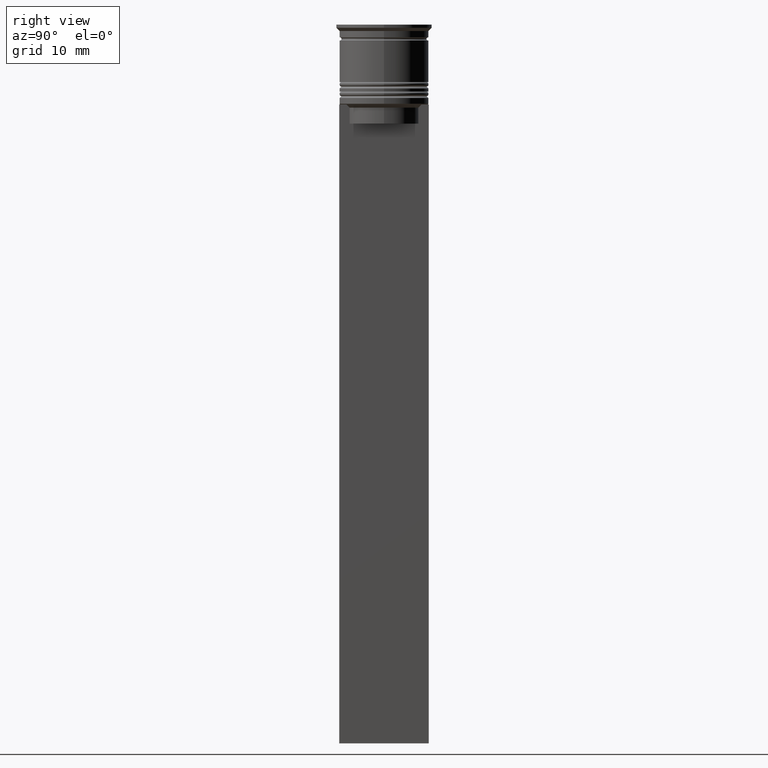
[diagram: clean part render]
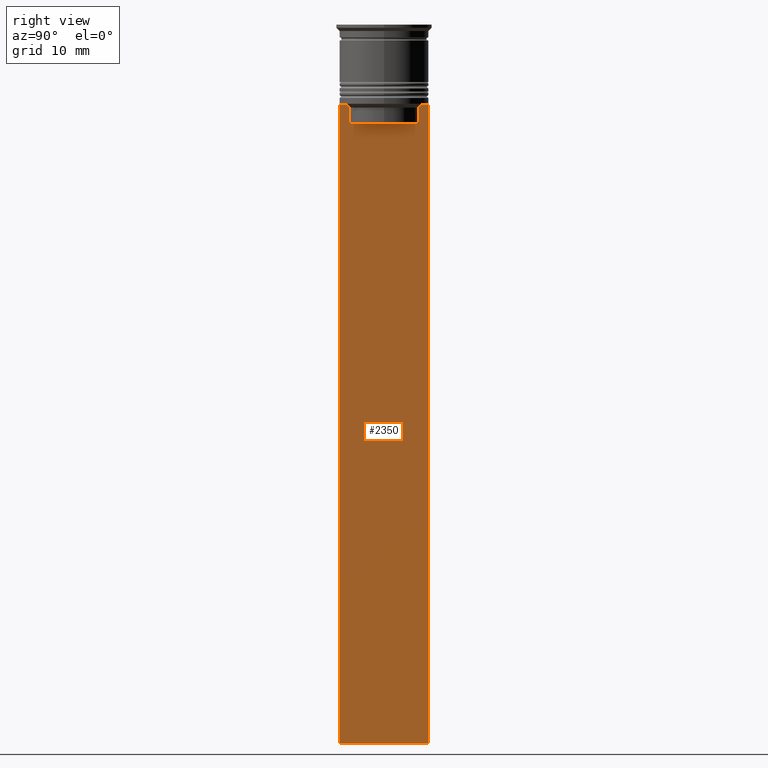
[diagram: same view with one face highlighted and labeled with its STEP entity id]
A machine part, right view. The second image highlights one B-rep face of the part: STEP entity #2350.
In plain terms, the highlighted planar face has unit normal (-1, 0, 0).
Its self-contained STEP definition (entity closure, byte-faithful):
#13 = CARTESIAN_POINT ( 'NONE',  ( 0.5000000000000000000, -6.999999999999997335, -112.5000000000000000 ) ) ;
#14 = VERTEX_POINT ( 'NONE', #2319 ) ;
#54 = B_SPLINE_CURVE_WITH_KNOTS ( 'NONE', 3,
 ( #2206, #819, #2405, #638 ),
 .UNSPECIFIED., .F., .F.,
 ( 4, 4 ),
 ( 0.01003009312103698807, 0.01073859663834952557 ),
 .UNSPECIFIED. ) ;
#67 = EDGE_LOOP ( 'NONE', ( #1154, #2326, #1482, #741, #858, #460, #88, #703, #2059, #2252, #1479, #1478 ) ) ;
#78 = VERTEX_POINT ( 'NONE', #1251 ) ;
#88 = ORIENTED_EDGE ( 'NONE', *, *, #1940, .T. ) ;
#100 = VERTEX_POINT ( 'NONE', #2023 ) ;
#107 = CARTESIAN_POINT ( 'NONE',  ( 0.5000000000000000000, -6.999999999999997335, -12.50000000000000000 ) ) ;
#138 = VERTEX_POINT ( 'NONE', #166 ) ;
#166 = CARTESIAN_POINT ( 'NONE',  ( 0.5000000000000000000, 6.881860213634102053, -12.50000000000000000 ) ) ;
#290 = DIRECTION ( 'NONE',  ( 0.000000000000000000, -1.000000000000000000, 0.000000000000000000 ) ) ;
#342 = DIRECTION ( 'NONE',  ( 0.000000000000000000, -1.000000000000000000, 0.000000000000000000 ) ) ;
#399 = VERTEX_POINT ( 'NONE', #1173 ) ;
#460 = ORIENTED_EDGE ( 'NONE', *, *, #2422, .T. ) ;
#463 = CARTESIAN_POINT ( 'NONE',  ( 0.5000000000000000000, -6.999999999999997335, 1.535668847618198329 ) ) ;
#485 = LINE ( 'NONE', #844, #596 ) ;
#490 = CARTESIAN_POINT ( 'NONE',  ( 0.5000000000000000000, -5.711478856069293286, -12.66669469529570335 ) ) ;
#569 = EDGE_CURVE ( 'NONE', #1762, #1822, #2184, .T. ) ;
#596 = VECTOR ( 'NONE', #1034, 1000.000000000000000 ) ;
#638 = CARTESIAN_POINT ( 'NONE',  ( 0.5000000000000000000, 5.376802023508029826, -13.00000000000000178 ) ) ;
#648 = PLANE ( 'NONE',  #2367 ) ;
#680 = VECTOR ( 'NONE', #2047, 1000.000000000000000 ) ;
#703 = ORIENTED_EDGE ( 'NONE', *, *, #1891, .T. ) ;
#741 = ORIENTED_EDGE ( 'NONE', *, *, #2459, .T. ) ;
#742 = VERTEX_POINT ( 'NONE', #1188 ) ;
#766 = EDGE_CURVE ( 'NONE', #100, #399, #814, .T. ) ;
#814 = LINE ( 'NONE', #13, #2042 ) ;
#819 = CARTESIAN_POINT ( 'NONE',  ( 0.5000000000000000000, 5.711478846560141598, -12.66669470477064685 ) ) ;
#843 = B_SPLINE_CURVE_WITH_KNOTS ( 'NONE', 3,
 ( #1450, #1260, #490, #1268 ),
 .UNSPECIFIED., .F., .F.,
 ( 4, 4 ),
 ( 0.02539176325380714666, 0.02610162431828674801 ),
 .UNSPECIFIED. ) ;
#844 = CARTESIAN_POINT ( 'NONE',  ( 0.5000000000000000000, -6.999999999999997335, -12.50000000000000000 ) ) ;
#847 = DIRECTION ( 'NONE',  ( -1.000000000000000000, 0.000000000000000000, 0.000000000000000000 ) ) ;
#858 = ORIENTED_EDGE ( 'NONE', *, *, #1379, .T. ) ;
#897 = DIRECTION ( 'NONE',  ( 0.000000000000000000, -1.000000000000000000, 0.000000000000000000 ) ) ;
#925 = CARTESIAN_POINT ( 'NONE',  ( 0.5000000000000000000, -6.999999999999997335, -12.50000000000000000 ) ) ;
#927 = CARTESIAN_POINT ( 'NONE',  ( 0.5000000000000000000, -6.881860213634102053, -12.50000000000000000 ) ) ;
#944 = VECTOR ( 'NONE', #2202, 1000.000000000000000 ) ;
#976 = EDGE_CURVE ( 'NONE', #138, #2077, #1797, .T. ) ;
#1031 = CARTESIAN_POINT ( 'NONE',  ( 0.5000000000000000000, 5.376802023508029826, 0.000000000000000000 ) ) ;
#1032 = VECTOR ( 'NONE', #290, 1000.000000000000000 ) ;
#1034 = DIRECTION ( 'NONE',  ( 0.000000000000000000, -1.000000000000000000, 0.000000000000000000 ) ) ;
#1036 = VECTOR ( 'NONE', #342, 1000.000000000000000 ) ;
#1076 = CARTESIAN_POINT ( 'NONE',  ( 0.5000000000000000000, -5.376802023508029826, 0.000000000000000000 ) ) ;
#1100 = CARTESIAN_POINT ( 'NONE',  ( 0.5000000000000000000, 5.400000000000003908, -15.50000000000000000 ) ) ;
#1154 = ORIENTED_EDGE ( 'NONE', *, *, #976, .T. ) ;
#1173 = CARTESIAN_POINT ( 'NONE',  ( 0.5000000000000000000, 7.000000000000002665, -112.5000000000000000 ) ) ;
#1188 = CARTESIAN_POINT ( 'NONE',  ( 0.5000000000000000000, -5.376802023508029826, -15.50000000000000000 ) ) ;
#1210 = CARTESIAN_POINT ( 'NONE',  ( 0.5000000000000000000, 7.000000000000002665, 1.535668847618198329 ) ) ;
#1222 = CARTESIAN_POINT ( 'NONE',  ( 0.5000000000000000000, 5.376802023508029826, -15.50000000000000000 ) ) ;
#1232 = LINE ( 'NONE', #1210, #1767 ) ;
#1244 = CARTESIAN_POINT ( 'NONE',  ( 0.5000000000000000000, -5.376802023508029826, -13.00000000000000178 ) ) ;
#1251 = CARTESIAN_POINT ( 'NONE',  ( 0.5000000000000000000, -6.999999999999997335, -12.50000000000000000 ) ) ;
#1260 = CARTESIAN_POINT ( 'NONE',  ( 0.5000000000000000000, -5.544156999454441959, -12.83336396790503642 ) ) ;
#1268 = CARTESIAN_POINT ( 'NONE',  ( 0.5000000000000000000, -5.878775382679629402, -12.50000000000000000 ) ) ;
#1340 = EDGE_CURVE ( 'NONE', #2077, #1762, #54, .T. ) ;
#1350 = EDGE_CURVE ( 'NONE', #1527, #138, #485, .T. ) ;
#1379 = EDGE_CURVE ( 'NONE', #742, #1800, #1456, .T. ) ;
#1418 = DIRECTION ( 'NONE',  ( 0.000000000000000000, 0.000000000000000000, -1.000000000000000000 ) ) ;
#1450 = CARTESIAN_POINT ( 'NONE',  ( 0.5000000000000000000, -5.376802023508029826, -13.00000000000000178 ) ) ;
#1456 = LINE ( 'NONE', #1076, #2482 ) ;
#1460 = VECTOR ( 'NONE', #2034, 1000.000000000000000 ) ;
#1467 = LINE ( 'NONE', #2429, #1460 ) ;
#1478 = ORIENTED_EDGE ( 'NONE', *, *, #1350, .T. ) ;
#1479 = ORIENTED_EDGE ( 'NONE', *, *, #1768, .F. ) ;
#1482 = ORIENTED_EDGE ( 'NONE', *, *, #569, .T. ) ;
#1527 = VERTEX_POINT ( 'NONE', #2263 ) ;
#1555 = CARTESIAN_POINT ( 'NONE',  ( 0.5000000000000000000, 5.878775382679629402, -12.50000000000000000 ) ) ;
#1709 = DIRECTION ( 'NONE',  ( 0.000000000000000000, 1.000000000000000000, 0.000000000000000000 ) ) ;
#1762 = VERTEX_POINT ( 'NONE', #2354 ) ;
#1767 = VECTOR ( 'NONE', #1418, 1000.000000000000000 ) ;
#1768 = EDGE_CURVE ( 'NONE', #1527, #399, #1232, .T. ) ;
#1797 = LINE ( 'NONE', #2381, #1032 ) ;
#1800 = VERTEX_POINT ( 'NONE', #1244 ) ;
#1815 = FACE_OUTER_BOUND ( 'NONE', #67, .T. ) ;
#1822 = VERTEX_POINT ( 'NONE', #1222 ) ;
#1856 = LINE ( 'NONE', #1100, #2447 ) ;
#1891 = EDGE_CURVE ( 'NONE', #2172, #78, #2227, .T. ) ;
#1900 = LINE ( 'NONE', #925, #680 ) ;
#1940 = EDGE_CURVE ( 'NONE', #14, #2172, #1900, .T. ) ;
#2023 = CARTESIAN_POINT ( 'NONE',  ( 0.5000000000000000000, -6.999999999999997335, -112.5000000000000000 ) ) ;
#2034 = DIRECTION ( 'NONE',  ( 0.000000000000000000, 0.000000000000000000, -1.000000000000000000 ) ) ;
#2035 = DIRECTION ( 'NONE',  ( -0.000000000000000000, -0.000000000000000000, 1.000000000000000000 ) ) ;
#2042 = VECTOR ( 'NONE', #1709, 1000.000000000000000 ) ;
#2047 = DIRECTION ( 'NONE',  ( 0.000000000000000000, -1.000000000000000000, 0.000000000000000000 ) ) ;
#2059 = ORIENTED_EDGE ( 'NONE', *, *, #2165, .T. ) ;
#2077 = VERTEX_POINT ( 'NONE', #1555 ) ;
#2165 = EDGE_CURVE ( 'NONE', #78, #100, #1467, .T. ) ;
#2172 = VERTEX_POINT ( 'NONE', #927 ) ;
#2175 = DIRECTION ( 'NONE',  ( 0.000000000000000000, 0.000000000000000000, 1.000000000000000000 ) ) ;
#2184 = LINE ( 'NONE', #1031, #944 ) ;
#2202 = DIRECTION ( 'NONE',  ( 0.000000000000000000, 0.000000000000000000, -1.000000000000000000 ) ) ;
#2206 = CARTESIAN_POINT ( 'NONE',  ( 0.5000000000000000000, 5.878775382679629402, -12.50000000000000000 ) ) ;
#2227 = LINE ( 'NONE', #107, #1036 ) ;
#2252 = ORIENTED_EDGE ( 'NONE', *, *, #766, .T. ) ;
#2263 = CARTESIAN_POINT ( 'NONE',  ( 0.5000000000000000000, 7.000000000000002665, -12.50000000000000000 ) ) ;
#2319 = CARTESIAN_POINT ( 'NONE',  ( 0.5000000000000000000, -5.878775382679629402, -12.50000000000000000 ) ) ;
#2326 = ORIENTED_EDGE ( 'NONE', *, *, #1340, .T. ) ;
#2350 = ADVANCED_FACE ( 'NONE', ( #1815 ), #648, .F. ) ;
#2354 = CARTESIAN_POINT ( 'NONE',  ( 0.5000000000000000000, 5.376802023508029826, -13.00000000000000178 ) ) ;
#2367 = AXIS2_PLACEMENT_3D ( 'NONE', #463, #847, #2175 ) ;
#2381 = CARTESIAN_POINT ( 'NONE',  ( 0.5000000000000000000, -6.999999999999997335, -12.50000000000000000 ) ) ;
#2405 = CARTESIAN_POINT ( 'NONE',  ( 0.5000000000000000000, 5.544156989057553275, -12.83336397825725861 ) ) ;
#2422 = EDGE_CURVE ( 'NONE', #1800, #14, #843, .T. ) ;
#2429 = CARTESIAN_POINT ( 'NONE',  ( 0.5000000000000000000, -6.999999999999997335, 1.535668847618198329 ) ) ;
#2447 = VECTOR ( 'NONE', #897, 1000.000000000000000 ) ;
#2459 = EDGE_CURVE ( 'NONE', #1822, #742, #1856, .T. ) ;
#2482 = VECTOR ( 'NONE', #2035, 1000.000000000000000 ) ;